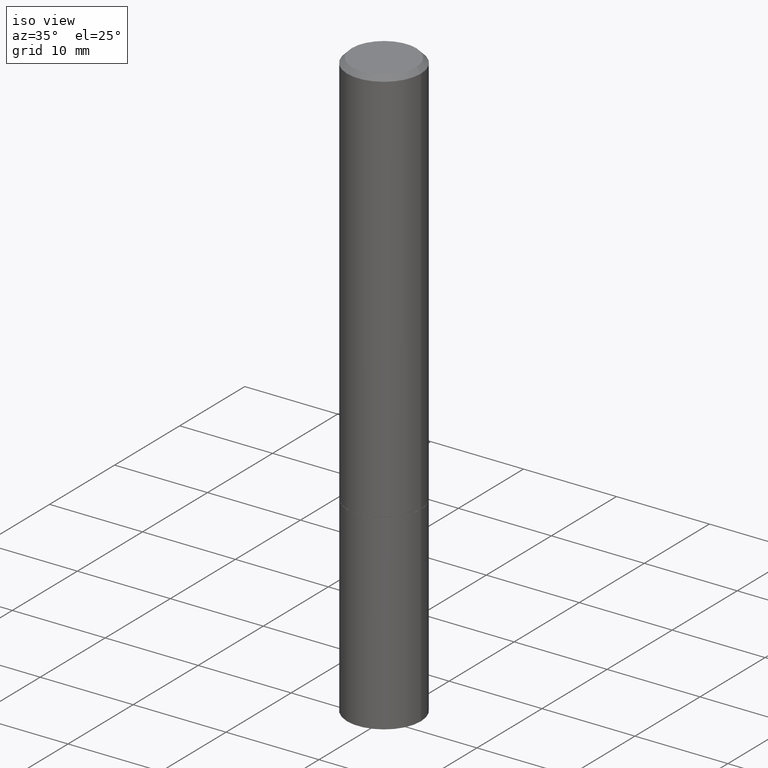
[diagram: clean part render]
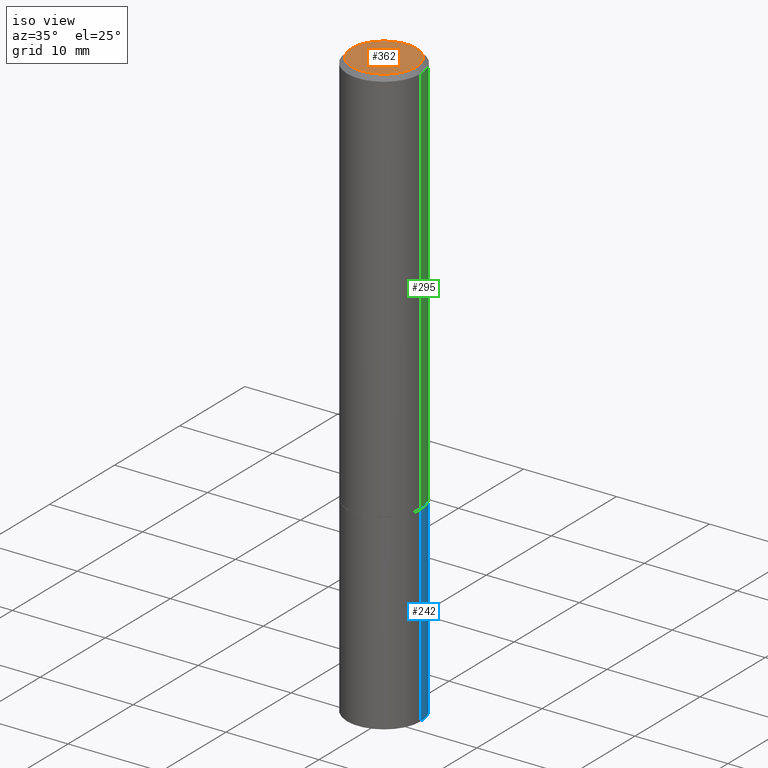
[diagram: same view with three faces highlighted in distinct colors, each labeled with its STEP entity id]
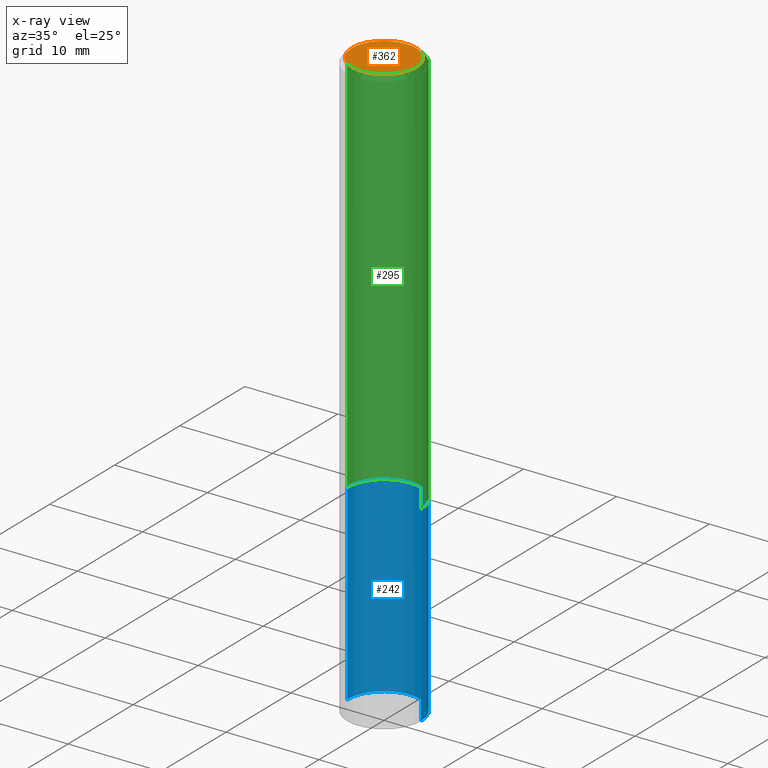
[diagram: x-ray of the same camera — body ghosted, the three highlighted faces saturated]
A machine part, iso view with three faces highlighted in distinct colors.
The next image is the same camera in x-ray (body ghosted, the three faces saturated) — at least one of them is partly hidden behind the body in this view.
Their STEP definitions:

[orange] entity #362 — the highlighted planar face has unit normal (0, -0, -1).
#20 = CARTESIAN_POINT ( 'NONE',  ( 0.000000000000000000, 0.000000000000000000, 0.000000000000000000 ) ) ;
#32 = CIRCLE ( 'NONE', #257, 0.1362499999999998157 ) ;
#35 = DIRECTION ( 'NONE',  ( 1.000000000000000000, -6.982962677686266711E-15, 4.876176775795935232E-29 ) ) ;
#41 = ORIENTED_EDGE ( 'NONE', *, *, #81, .T. ) ;
#56 = EDGE_LOOP ( 'NONE', ( #176, #41 ) ) ;
#67 = CARTESIAN_POINT ( 'NONE',  ( 9.514286648347523799E-16, 0.1362499999999998157, -4.757143324173778663E-16 ) ) ;
#70 = DIRECTION ( 'NONE',  ( 2.438088387897960049E-29, -3.491481338843145188E-15, -1.000000000000000000 ) ) ;
#81 = EDGE_CURVE ( 'NONE', #258, #167, #354, .T. ) ;
#167 = VERTEX_POINT ( 'NONE', #280 ) ;
#176 = ORIENTED_EDGE ( 'NONE', *, *, #318, .T. ) ;
#177 = CARTESIAN_POINT ( 'NONE',  ( 0.000000000000000000, 0.000000000000000000, 0.000000000000000000 ) ) ;
#196 = CARTESIAN_POINT ( 'NONE',  ( 0.1362499999999998157, -1.038262645562516744E-15, 6.957025900226686667E-30 ) ) ;
#214 = PLANE ( 'NONE',  #220 ) ;
#216 = DIRECTION ( 'NONE',  ( -2.445468806185136597E-29, 3.491481338843145583E-15, 1.000000000000000000 ) ) ;
#220 = AXIS2_PLACEMENT_3D ( 'NONE', #67, #70, #268 ) ;
#243 = AXIS2_PLACEMENT_3D ( 'NONE', #20, #216, #327 ) ;
#257 = AXIS2_PLACEMENT_3D ( 'NONE', #177, #263, #35 ) ;
#258 = VERTEX_POINT ( 'NONE', #196 ) ;
#263 = DIRECTION ( 'NONE',  ( -2.445468806185136597E-29, 3.491481338843145583E-15, 1.000000000000000000 ) ) ;
#268 = DIRECTION ( 'NONE',  ( -1.000000000000000000, 6.982962677686265922E-15, -4.876176775795935793E-29 ) ) ;
#280 = CARTESIAN_POINT ( 'NONE',  ( -0.1362499999999998157, 9.863434782231836346E-16, -6.775751096333130074E-30 ) ) ;
#315 = FACE_OUTER_BOUND ( 'NONE', #56, .T. ) ;
#318 = EDGE_CURVE ( 'NONE', #167, #258, #32, .T. ) ;
#327 = DIRECTION ( 'NONE',  ( 1.000000000000000000, -6.982962677686266711E-15, 4.876176775795935232E-29 ) ) ;
#354 = CIRCLE ( 'NONE', #243, 0.1362499999999998157 ) ;
#362 = ADVANCED_FACE ( 'NONE', ( #315 ), #214, .F. ) ;

[blue] entity #242 — the highlighted cylindrical surface (partial cylindrical patch) has radius 3.9688 mm, axis along (-0, 0, 1).
#2 = DIRECTION ( 'NONE',  ( -2.445468806185136597E-29, 3.491481338843145583E-15, 1.000000000000000000 ) ) ;
#23 = EDGE_CURVE ( 'NONE', #206, #83, #282, .T. ) ;
#31 = ORIENTED_EDGE ( 'NONE', *, *, #39, .F. ) ;
#37 = CARTESIAN_POINT ( 'NONE',  ( 4.127951344840510809E-29, -5.893620499967230340E-15, -1.688000000000000167 ) ) ;
#39 = EDGE_CURVE ( 'NONE', #291, #206, #155, .T. ) ;
#83 = VERTEX_POINT ( 'NONE', #185 ) ;
#126 = CIRCLE ( 'NONE', #293, 0.1562500000000000000 ) ;
#135 = VECTOR ( 'NONE', #201, 39.37007874015748143 ) ;
#140 = DIRECTION ( 'NONE',  ( -2.445468806185136597E-29, 3.491481338843145583E-15, 1.000000000000000000 ) ) ;
#147 = CARTESIAN_POINT ( 'NONE',  ( -0.1562500000000000000, 1.110223024625156540E-15, -7.685836078523291160E-30 ) ) ;
#155 = LINE ( 'NONE', #184, #195 ) ;
#166 = CARTESIAN_POINT ( 'NONE',  ( 0.000000000000000000, 0.000000000000000000, 0.000000000000000000 ) ) ;
#173 = CARTESIAN_POINT ( 'NONE',  ( 0.1562500000000000000, -9.819791265496344905E-15, -2.500000000000000000 ) ) ;
#182 = ORIENTED_EDGE ( 'NONE', *, *, #306, .T. ) ;
#184 = CARTESIAN_POINT ( 'NONE',  ( 0.1562500000000000000, -1.091087918388479174E-15, 7.619026212181150377E-30 ) ) ;
#185 = CARTESIAN_POINT ( 'NONE',  ( -0.1562500000000000000, -6.200938898912389918E-15, -1.688000000000000167 ) ) ;
#195 = VECTOR ( 'NONE', #319, 39.37007874015748143 ) ;
#198 = CYLINDRICAL_SURFACE ( 'NONE', #360, 0.1562500000000000000 ) ;
#201 = DIRECTION ( 'NONE',  ( -2.445468806185136877E-29, 3.491481338843145188E-15, 1.000000000000000000 ) ) ;
#206 = VERTEX_POINT ( 'NONE', #308 ) ;
#225 = DIRECTION ( 'NONE',  ( 1.000000000000000000, -6.982962677686266711E-15, 4.876176775795936353E-29 ) ) ;
#227 = FACE_OUTER_BOUND ( 'NONE', #267, .T. ) ;
#234 = ORIENTED_EDGE ( 'NONE', *, *, #23, .F. ) ;
#242 = ADVANCED_FACE ( 'NONE', ( #227 ), #198, .T. ) ;
#256 = DIRECTION ( 'NONE',  ( 1.000000000000000000, -6.982962677686269077E-15, 0.000000000000000000 ) ) ;
#261 = ORIENTED_EDGE ( 'NONE', *, *, #271, .T. ) ;
#267 = EDGE_LOOP ( 'NONE', ( #261, #182, #234, #31 ) ) ;
#271 = EDGE_CURVE ( 'NONE', #291, #321, #126, .T. ) ;
#279 = CARTESIAN_POINT ( 'NONE',  ( 6.113672015462842613E-29, -8.728703347107864943E-15, -2.500000000000000000 ) ) ;
#282 = CIRCLE ( 'NONE', #359, 0.1562500000000000000 ) ;
#291 = VERTEX_POINT ( 'NONE', #173 ) ;
#293 = AXIS2_PLACEMENT_3D ( 'NONE', #279, #140, #256 ) ;
#300 = DIRECTION ( 'NONE',  ( 1.000000000000000000, -6.982962677686269077E-15, 0.000000000000000000 ) ) ;
#306 = EDGE_CURVE ( 'NONE', #321, #83, #339, .T. ) ;
#308 = CARTESIAN_POINT ( 'NONE',  ( 0.1562500000000000000, -6.984708418355709513E-15, -1.688000000000000167 ) ) ;
#317 = CARTESIAN_POINT ( 'NONE',  ( -0.1562500000000000000, -6.200938898912389918E-15, -2.500000000000000000 ) ) ;
#319 = DIRECTION ( 'NONE',  ( -2.445468806185136877E-29, 3.491481338843145188E-15, 1.000000000000000000 ) ) ;
#321 = VERTEX_POINT ( 'NONE', #317 ) ;
#339 = LINE ( 'NONE', #147, #135 ) ;
#351 = DIRECTION ( 'NONE',  ( -2.445468806185136597E-29, 3.491481338843145583E-15, 1.000000000000000000 ) ) ;
#359 = AXIS2_PLACEMENT_3D ( 'NONE', #37, #351, #300 ) ;
#360 = AXIS2_PLACEMENT_3D ( 'NONE', #166, #2, #225 ) ;

[green] entity #295 — the highlighted cylindrical surface (partial cylindrical patch) has radius 3.9687 mm, axis along (-0, 0, 1).
#8 = CYLINDRICAL_SURFACE ( 'NONE', #366, 0.1562499999999999167 ) ;
#27 = DIRECTION ( 'NONE',  ( -2.445468806185136877E-29, 3.491481338843145188E-15, 1.000000000000000000 ) ) ;
#34 = ORIENTED_EDGE ( 'NONE', *, *, #352, .F. ) ;
#45 = VERTEX_POINT ( 'NONE', #94 ) ;
#47 = DIRECTION ( 'NONE',  ( -2.445468806185136597E-29, 3.491481338843145583E-15, 1.000000000000000000 ) ) ;
#50 = EDGE_CURVE ( 'NONE', #45, #228, #292, .T. ) ;
#55 = CARTESIAN_POINT ( 'NONE',  ( 4.890937612370281041E-31, -6.982962677686302702E-17, -0.02000000000000003511 ) ) ;
#61 = DIRECTION ( 'NONE',  ( -2.445468806185136597E-29, 3.491481338843145583E-15, 1.000000000000000000 ) ) ;
#86 = EDGE_LOOP ( 'NONE', ( #203, #143, #231, #34 ) ) ;
#89 = VECTOR ( 'NONE', #91, 39.37007874015748143 ) ;
#91 = DIRECTION ( 'NONE',  ( -2.445468806185136877E-29, 3.491481338843145188E-15, 1.000000000000000000 ) ) ;
#94 = CARTESIAN_POINT ( 'NONE',  ( 0.1562500000000000000, -6.981216937016866506E-15, -1.687000000000000055 ) ) ;
#112 = AXIS2_PLACEMENT_3D ( 'NONE', #55, #47, #161 ) ;
#123 = CARTESIAN_POINT ( 'NONE',  ( 4.125505876034325766E-29, -5.890129018628387333E-15, -1.687000000000000055 ) ) ;
#136 = CARTESIAN_POINT ( 'NONE',  ( -0.1562500000000000000, -1.869756298077466803E-15, -1.687000000000000055 ) ) ;
#143 = ORIENTED_EDGE ( 'NONE', *, *, #187, .T. ) ;
#149 = CARTESIAN_POINT ( 'NONE',  ( 0.1562499999999998057, -1.141782438928663330E-15, -0.02000000000000003511 ) ) ;
#161 = DIRECTION ( 'NONE',  ( 1.000000000000000000, -6.982962677686265133E-15, 0.000000000000000000 ) ) ;
#187 = EDGE_CURVE ( 'NONE', #228, #294, #332, .T. ) ;
#203 = ORIENTED_EDGE ( 'NONE', *, *, #50, .T. ) ;
#208 = FACE_OUTER_BOUND ( 'NONE', #86, .T. ) ;
#209 = CARTESIAN_POINT ( 'NONE',  ( -0.1562499999999998057, 1.021258291611614692E-15, -0.02000000000000003511 ) ) ;
#228 = VERTEX_POINT ( 'NONE', #136 ) ;
#231 = ORIENTED_EDGE ( 'NONE', *, *, #269, .F. ) ;
#232 = CARTESIAN_POINT ( 'NONE',  ( 0.000000000000000000, 0.000000000000000000, 0.000000000000000000 ) ) ;
#236 = AXIS2_PLACEMENT_3D ( 'NONE', #123, #276, #356 ) ;
#254 = CARTESIAN_POINT ( 'NONE',  ( 0.1562499999999999167, -1.091087918388478385E-15, 7.619026212181144772E-30 ) ) ;
#260 = LINE ( 'NONE', #254, #89 ) ;
#269 = EDGE_CURVE ( 'NONE', #341, #294, #355, .T. ) ;
#276 = DIRECTION ( 'NONE',  ( -2.445468806185136597E-29, 3.491481338843145583E-15, 1.000000000000000000 ) ) ;
#278 = VECTOR ( 'NONE', #27, 39.37007874015748143 ) ;
#281 = CARTESIAN_POINT ( 'NONE',  ( -0.1562499999999999167, 1.110223024625155949E-15, -7.685836078523285555E-30 ) ) ;
#289 = DIRECTION ( 'NONE',  ( 1.000000000000000000, -6.982962677686265133E-15, 4.876176775795935232E-29 ) ) ;
#292 = CIRCLE ( 'NONE', #236, 0.1562500000000000000 ) ;
#294 = VERTEX_POINT ( 'NONE', #209 ) ;
#295 = ADVANCED_FACE ( 'NONE', ( #208 ), #8, .T. ) ;
#332 = LINE ( 'NONE', #281, #278 ) ;
#341 = VERTEX_POINT ( 'NONE', #149 ) ;
#352 = EDGE_CURVE ( 'NONE', #45, #341, #260, .T. ) ;
#355 = CIRCLE ( 'NONE', #112, 0.1562499999999998057 ) ;
#356 = DIRECTION ( 'NONE',  ( 1.000000000000000000, -6.982962677686269077E-15, 0.000000000000000000 ) ) ;
#366 = AXIS2_PLACEMENT_3D ( 'NONE', #232, #61, #289 ) ;